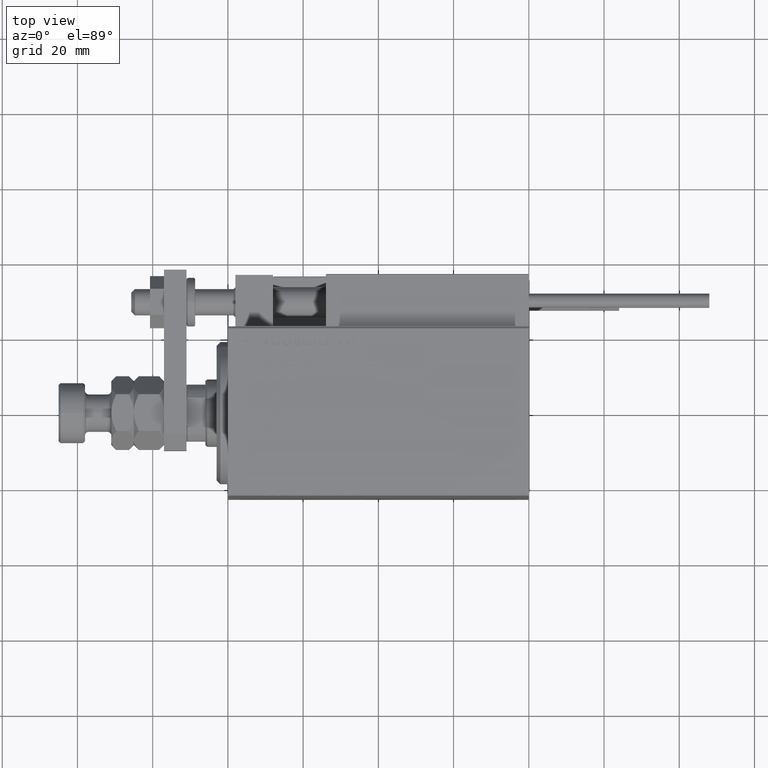
[diagram: clean part render]
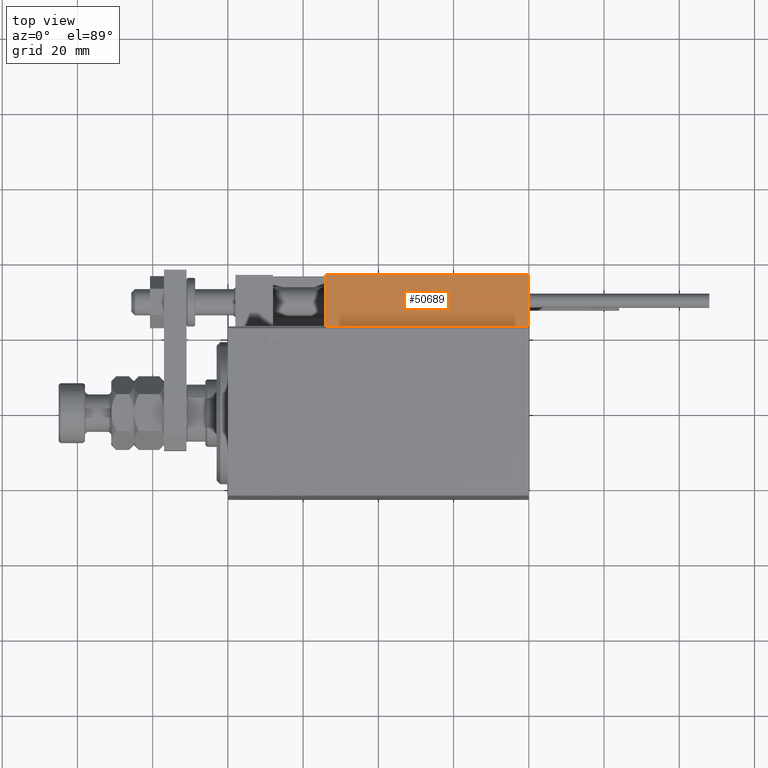
[diagram: same view with one face highlighted and labeled with its STEP entity id]
A machine part, top view. The second image highlights one B-rep face of the part: STEP entity #50689.
In plain terms, the highlighted planar face has unit normal (-0, -0, -1).
Its self-contained STEP definition (entity closure, byte-faithful):
#3399 = DIRECTION ( 'NONE',  ( 1.000000000000000000, -6.424901762877063495E-17, 0.000000000000000000 ) ) ;
#3407 = VECTOR ( 'NONE', #40182, 1000.000000000000000 ) ;
#3927 = LINE ( 'NONE', #24157, #3407 ) ;
#5101 = CARTESIAN_POINT ( 'NONE',  ( 27.00000000000006395, 20.00000000000001776, 0.000000000000000000 ) ) ;
#7545 = DIRECTION ( 'NONE',  ( -1.000000000000000000, 6.424901762877062263E-17, 0.000000000000000000 ) ) ;
#10475 = EDGE_CURVE ( 'NONE', #41420, #43947, #37058, .T. ) ;
#11962 = CARTESIAN_POINT ( 'NONE',  ( 27.00000000000006395, 20.00000000000001776, 13.70000000000000107 ) ) ;
#17597 = CARTESIAN_POINT ( 'NONE',  ( 27.00000000000006395, 20.00000000000001776, 13.70000000000000107 ) ) ;
#20016 = VERTEX_POINT ( 'NONE', #17597 ) ;
#20827 = CARTESIAN_POINT ( 'NONE',  ( -26.99999999999993605, 20.00000000000002132, 13.70000000000000107 ) ) ;
#21011 = DIRECTION ( 'NONE',  ( -0.000000000000000000, -0.000000000000000000, -1.000000000000000000 ) ) ;
#21829 = VECTOR ( 'NONE', #21011, 1000.000000000000000 ) ;
#22585 = PLANE ( 'NONE',  #45385 ) ;
#23078 = EDGE_LOOP ( 'NONE', ( #36970, #48627, #47431, #50361 ) ) ;
#23595 = VECTOR ( 'NONE', #7545, 1000.000000000000000 ) ;
#24157 = CARTESIAN_POINT ( 'NONE',  ( 27.00000000000006395, 20.00000000000001776, 14.00000000000000000 ) ) ;
#26097 = EDGE_CURVE ( 'NONE', #20016, #27446, #3927, .T. ) ;
#27009 = CARTESIAN_POINT ( 'NONE',  ( 27.00000000000006395, 20.00000000000001776, 0.000000000000000000 ) ) ;
#27446 = VERTEX_POINT ( 'NONE', #5101 ) ;
#28667 = EDGE_CURVE ( 'NONE', #41420, #20016, #47985, .T. ) ;
#30721 = DIRECTION ( 'NONE',  ( -6.424901762877063495E-17, -1.000000000000000000, 0.000000000000000000 ) ) ;
#34848 = DIRECTION ( 'NONE',  ( 1.000000000000000000, -6.424901762877063495E-17, -0.000000000000000000 ) ) ;
#36970 = ORIENTED_EDGE ( 'NONE', *, *, #10475, .F. ) ;
#37058 = LINE ( 'NONE', #41514, #21829 ) ;
#39385 = CARTESIAN_POINT ( 'NONE',  ( 27.00000000000006395, 20.00000000000001776, 14.00000000000000000 ) ) ;
#40182 = DIRECTION ( 'NONE',  ( -0.000000000000000000, -0.000000000000000000, -1.000000000000000000 ) ) ;
#41420 = VERTEX_POINT ( 'NONE', #20827 ) ;
#41514 = CARTESIAN_POINT ( 'NONE',  ( -26.99999999999993605, 20.00000000000002132, 14.00000000000000000 ) ) ;
#43078 = FACE_OUTER_BOUND ( 'NONE', #23078, .T. ) ;
#43947 = VERTEX_POINT ( 'NONE', #46829 ) ;
#45385 = AXIS2_PLACEMENT_3D ( 'NONE', #39385, #30721, #3399 ) ;
#46829 = CARTESIAN_POINT ( 'NONE',  ( -26.99999999999993605, 20.00000000000002132, 0.000000000000000000 ) ) ;
#47108 = VECTOR ( 'NONE', #34848, 1000.000000000000000 ) ;
#47431 = ORIENTED_EDGE ( 'NONE', *, *, #26097, .T. ) ;
#47863 = EDGE_CURVE ( 'NONE', #27446, #43947, #51183, .T. ) ;
#47985 = LINE ( 'NONE', #11962, #47108 ) ;
#48627 = ORIENTED_EDGE ( 'NONE', *, *, #28667, .T. ) ;
#50361 = ORIENTED_EDGE ( 'NONE', *, *, #47863, .T. ) ;
#50689 = ADVANCED_FACE ( 'NONE', ( #43078 ), #22585, .F. ) ;
#51183 = LINE ( 'NONE', #27009, #23595 ) ;